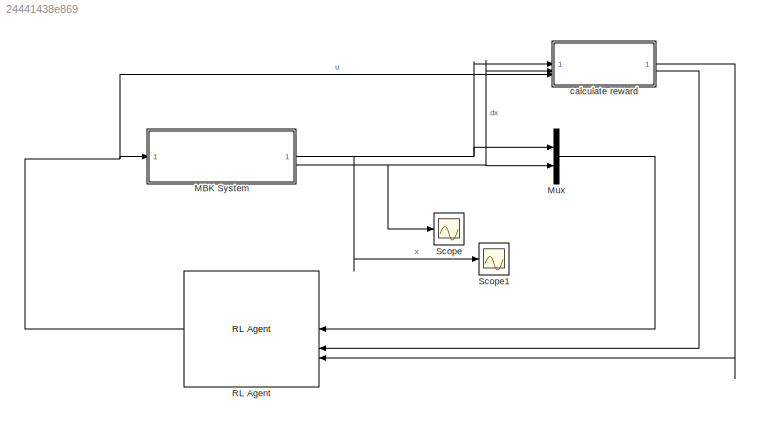
MODEL slx_24441438e869
KIND model
CONFIG AbsTol = 1e-6
CONFIG EnableMultiTasking = off
CONFIG FixedStep = auto
CONFIG MaxStep = auto
CONFIG MinStep = auto
CONFIG RelTol = 1e-5
CONFIG SampleTimeConstraint = Unconstrained
CONFIG SolverName = ode45
CONFIG StartTime = 0.0
CONFIG StopTime = Tf
WORKSPACE source: mxarray member
WORKSPACE I = 0
WORKSPACE c = 0
WORKSPACE g = 9.81
WORKSPACE l = 1
WORKSPACE m = 1
WORKSPACE max_tau = 2
WORKSPACE theta0 = 0
WORKSPACE theta_dot0 = 0
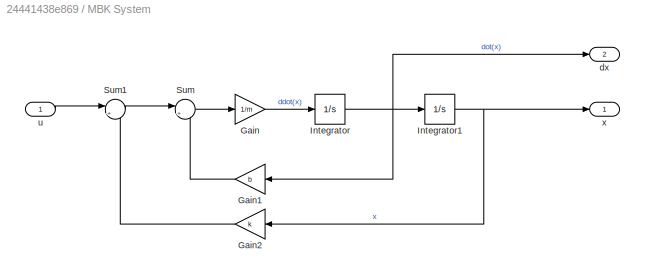
BLOCK [SubSystem] MBK System
BLOCK [Gain] MBK System/Gain
  Gain = 1/m
BLOCK [Gain] MBK System/Gain1
  Gain = b
  NameLocation = top
BLOCK [Gain] MBK System/Gain2
  Gain = k
  NameLocation = top
BLOCK [Integrator] MBK System/Integrator
BLOCK [Integrator] MBK System/Integrator1
  InitialCondition = x0
BLOCK [Sum] MBK System/Sum
  Inputs = |+-
BLOCK [Sum] MBK System/Sum1
  Inputs = |+-
BLOCK [Outport] MBK System/dx
  Port = 2
BLOCK [Inport] MBK System/u
BLOCK [Outport] MBK System/x
BLOCK [Mux] Mux
  DisplayOption = bar
  Inputs = 2
BLOCK [Reference] RL Agent  REF=rllib/RL Agent
  SourceBlock = rllib/RL Agent
  SourceType = RL Agent
BLOCK [Scope] Scope
  Floating = off
  NumInputPorts = 1
  ScopeSpecificationString = Simulink.scopes.TimeScopeBlockCfg('CurrentConfiguration', extmgr.ConfigurationSet(extmgr.Configuration('Core','General UI',true),extmgr.Configuration('Core','Source UI',true),extmgr.Configuration('Sources','WiredSimulink',true,'DataLoggingVariableName','ScopeData1'),extmgr.Configuration('Visuals','Time Domain',true,'SerializedDisplays',{struct('MinYLimReal','-24.59332','MaxYLimReal','26.18288','YL...<+1456ch>
BLOCK [Scope] Scope1
  Floating = off
  NumInputPorts = 1
  ScopeSpecificationString = Simulink.scopes.TimeScopeBlockCfg('CurrentConfiguration', extmgr.ConfigurationSet(extmgr.Configuration('Core','General UI',true),extmgr.Configuration('Core','Source UI',true),extmgr.Configuration('Sources','WiredSimulink',true,'DataLoggingVariableName','ScopeData2'),extmgr.Configuration('Visuals','Time Domain',true,'SerializedDisplays',{struct('MinYLimReal','-10.39567','MaxYLimReal','12.26619','YL...<+1455ch>
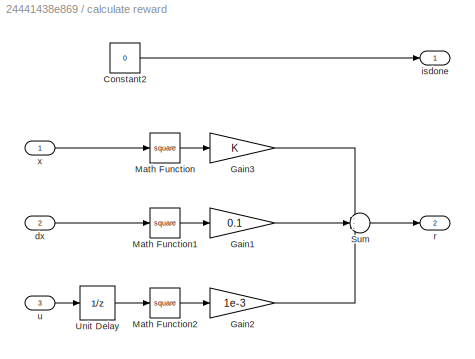
BLOCK [SubSystem] calculate reward
BLOCK [Constant] calculate reward/Constant2
  Value = 0
BLOCK [Gain] calculate reward/Gain1
  Gain = 0.1
BLOCK [Gain] calculate reward/Gain2
  Gain = 1e-3
BLOCK [Gain] calculate reward/Gain3
BLOCK [Math] calculate reward/Math Function
  Operator = square
  SignedPower = on
BLOCK [Math] calculate reward/Math Function1
  Operator = square
  SignedPower = on
BLOCK [Math] calculate reward/Math Function2
  Operator = square
  SignedPower = on
BLOCK [Sum] calculate reward/Sum
  Inputs = ---
BLOCK [UnitDelay] calculate reward/Unit Delay
  HasFrameUpgradeWarning = on
  SampleTime = -1
BLOCK [Inport] calculate reward/dx
  Port = 2
BLOCK [Outport] calculate reward/isdone
  VectorParamsAs1DForOutWhenUnconnected = off
BLOCK [Outport] calculate reward/r
  Port = 2
  VectorParamsAs1DForOutWhenUnconnected = off
BLOCK [Inport] calculate reward/u
  Port = 3
BLOCK [Inport] calculate reward/x
LINE MBK System/Gain1:1 -> MBK System/Sum:2
LINE MBK System/Gain2:1 -> MBK System/Sum1:2
LINE MBK System/Gain:1 -> MBK System/Integrator:1
NET MBK System/Integrator1:1 -> MBK System/Gain2:1, MBK System/x:1
NET MBK System/Integrator:1 -> MBK System/Gain1:1, MBK System/Integrator1:1, MBK System/dx:1
LINE MBK System/Sum1:1 -> MBK System/Sum:1
LINE MBK System/Sum:1 -> MBK System/Gain:1
LINE MBK System/u:1 -> MBK System/Sum1:1
NET MBK System:1 -> Mux:1, Scope1:1, calculate reward:1
NET MBK System:2 -> Mux:2, Scope:1, calculate reward:2
LINE Mux:1 -> RL Agent:1
NET RL Agent:1 -> MBK System:1, calculate reward:3
LINE calculate reward/Constant2:1 -> calculate reward/isdone:1
LINE calculate reward/Gain1:1 -> calculate reward/Sum:2
LINE calculate reward/Gain2:1 -> calculate reward/Sum:3
LINE calculate reward/Gain3:1 -> calculate reward/Sum:1
LINE calculate reward/Math Function1:1 -> calculate reward/Gain1:1
LINE calculate reward/Math Function2:1 -> calculate reward/Gain2:1
LINE calculate reward/Math Function:1 -> calculate reward/Gain3:1
LINE calculate reward/Sum:1 -> calculate reward/r:1
LINE calculate reward/Unit Delay:1 -> calculate reward/Math Function2:1
LINE calculate reward/dx:1 -> calculate reward/Math Function1:1
LINE calculate reward/u:1 -> calculate reward/Unit Delay:1
LINE calculate reward/x:1 -> calculate reward/Math Function:1
LINE calculate reward:1 -> RL Agent:3
LINE calculate reward:2 -> RL Agent:2
note: NET lines group one-source signal fan-out (src -> all destinations, sorted); 1:1 wires keep LINE
